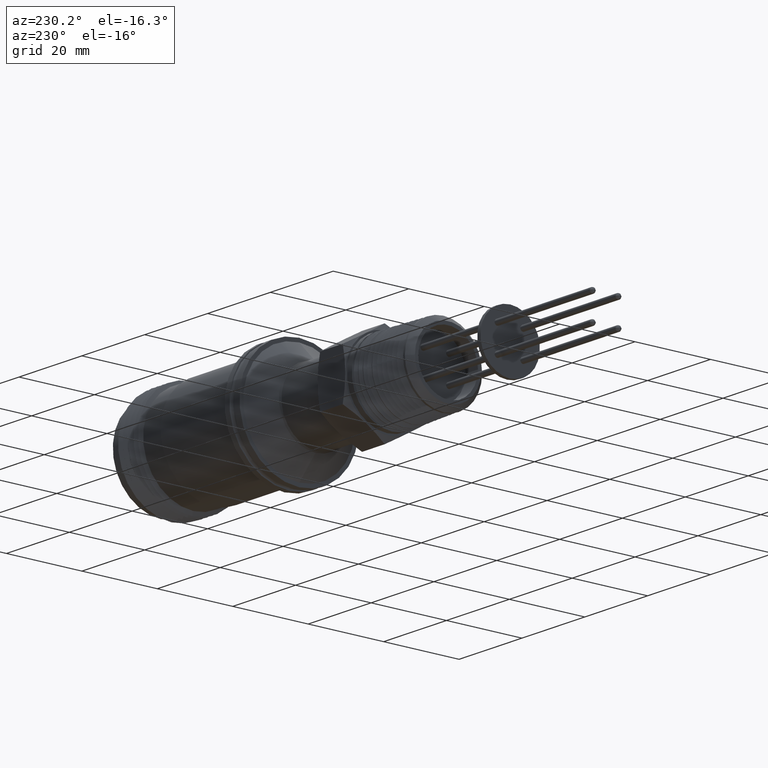
[diagram: clean part render]
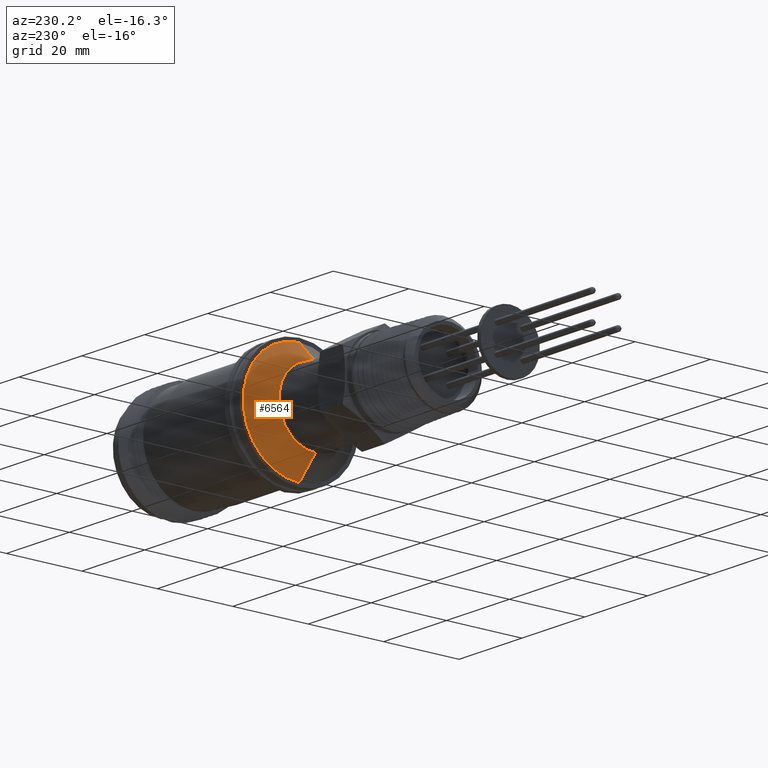
[diagram: same view with one face highlighted and labeled with its STEP entity id]
A machine part, auxiliary view. The second image highlights one B-rep face of the part: STEP entity #6564.
In plain terms, the highlighted conical surface has half-angle 45 deg.
Its self-contained STEP definition (entity closure, byte-faithful):
#63 = AXIS2_PLACEMENT_3D ( 'NONE', #2453, #2452, #2449 ) ;
#222 = CARTESIAN_POINT ( 'NONE',  ( 1.010360389693210700, -4.215224444734946500E-018, -0.3822867965644046700 ) ) ;
#232 = CARTESIAN_POINT ( 'NONE',  ( 1.214000000000000200, 7.175528987107189300E-017, 0.5859264068711952400 ) ) ;
#339 = DIRECTION ( 'NONE',  ( 0.0000000000000000000, 0.0000000000000000000, -1.000000000000000000 ) ) ;
#456 = DIRECTION ( 'NONE',  ( 1.000000000000000000, 4.139886575489495200E-017, 1.089615222878585900E-016 ) ) ;
#470 = CARTESIAN_POINT ( 'NONE',  ( 1.214000000000000200, 3.139028158307853400E-049, 8.261899943315120700E-049 ) ) ;
#860 = CIRCLE ( 'NONE', #63, 0.3822867965644046700 ) ;
#893 = VECTOR ( 'NONE', #2549, 39.37007874015748900 ) ;
#895 = LINE ( 'NONE', #2550, #893 ) ;
#903 = VECTOR ( 'NONE', #2556, 39.37007874015748900 ) ;
#906 = LINE ( 'NONE', #2557, #903 ) ;
#932 = CIRCLE ( 'NONE', #5517, 0.3822867965644046700 ) ;
#1456 = EDGE_LOOP ( 'NONE', ( #7039, #6606, #7154, #6839, #7136 ) ) ;
#2206 = AXIS2_PLACEMENT_3D ( 'NONE', #8227, #8226, #8225 ) ;
#2371 = AXIS2_PLACEMENT_3D ( 'NONE', #470, #456, #339 ) ;
#2449 = DIRECTION ( 'NONE',  ( 0.0000000000000000000, -0.9348021323207901200, 0.3551689364351896500 ) ) ;
#2452 = DIRECTION ( 'NONE',  ( 1.000000000000000000, 0.0000000000000000000, 0.0000000000000000000 ) ) ;
#2453 = CARTESIAN_POINT ( 'NONE',  ( 1.010360389693210700, 0.0000000000000000000, 0.0000000000000000000 ) ) ;
#2525 = DIRECTION ( 'NONE',  ( 1.000000000000000000, 0.0000000000000000000, 0.0000000000000000000 ) ) ;
#2526 = DIRECTION ( 'NONE',  ( 0.0000000000000000000, -0.9348021323207901200, 0.3551689364351896500 ) ) ;
#2529 = CARTESIAN_POINT ( 'NONE',  ( 1.010360389693210700, 0.0000000000000000000, 0.0000000000000000000 ) ) ;
#2549 = DIRECTION ( 'NONE',  ( 0.7071067811865452400, 2.927341870871765800E-017, -0.7071067811865496800 ) ) ;
#2550 = CARTESIAN_POINT ( 'NONE',  ( 1.214000000000000200, 3.139028158307853400E-049, -0.5859264068711953500 ) ) ;
#2556 = DIRECTION ( 'NONE',  ( 0.7071067811865450200, 1.158690243322672600E-016, 0.7071067811865499000 ) ) ;
#2557 = CARTESIAN_POINT ( 'NONE',  ( 1.214000000000000200, 7.175528987107190600E-017, 0.5859264068711953500 ) ) ;
#2964 = EDGE_CURVE ( 'NONE', #7597, #6774, #3072, .T. ) ;
#3072 = CIRCLE ( 'NONE', #2206, 0.5859264068711953500 ) ;
#5321 = EDGE_CURVE ( 'NONE', #6794, #6934, #932, .T. ) ;
#5335 = EDGE_CURVE ( 'NONE', #7444, #6774, #906, .T. ) ;
#5341 = EDGE_CURVE ( 'NONE', #6794, #7597, #895, .T. ) ;
#5365 = EDGE_CURVE ( 'NONE', #6934, #7444, #860, .T. ) ;
#5517 = AXIS2_PLACEMENT_3D ( 'NONE', #2529, #2525, #2526 ) ;
#5671 = CARTESIAN_POINT ( 'NONE',  ( 1.010360389693210700, 0.3573625125864889300, -0.1357763949489951500 ) ) ;
#5818 = CARTESIAN_POINT ( 'NONE',  ( 1.010360389693210700, 5.507073557924568300E-017, 0.3822867965644046700 ) ) ;
#5887 = CARTESIAN_POINT ( 'NONE',  ( 1.214000000000000200, 2.643045722089860000E-033, -0.5859264068711954600 ) ) ;
#6432 = CONICAL_SURFACE ( 'NONE', #2371, 0.5859264068711953500, 0.7853981633974516100 ) ;
#6440 = FACE_OUTER_BOUND ( 'NONE', #1456, .T. ) ;
#6564 = ADVANCED_FACE ( 'NONE', ( #6440 ), #6432, .T. ) ;
#6606 = ORIENTED_EDGE ( 'NONE', *, *, #5365, .T. ) ;
#6774 = VERTEX_POINT ( 'NONE', #232 ) ;
#6794 = VERTEX_POINT ( 'NONE', #222 ) ;
#6839 = ORIENTED_EDGE ( 'NONE', *, *, #2964, .F. ) ;
#6934 = VERTEX_POINT ( 'NONE', #5671 ) ;
#7039 = ORIENTED_EDGE ( 'NONE', *, *, #5321, .T. ) ;
#7136 = ORIENTED_EDGE ( 'NONE', *, *, #5341, .F. ) ;
#7154 = ORIENTED_EDGE ( 'NONE', *, *, #5335, .T. ) ;
#7444 = VERTEX_POINT ( 'NONE', #5818 ) ;
#7597 = VERTEX_POINT ( 'NONE', #5887 ) ;
#8225 = DIRECTION ( 'NONE',  ( 0.0000000000000000000, 0.0000000000000000000, -1.000000000000000000 ) ) ;
#8226 = DIRECTION ( 'NONE',  ( 1.000000000000000000, 4.139886575489495200E-017, 1.089615222878585900E-016 ) ) ;
#8227 = CARTESIAN_POINT ( 'NONE',  ( 1.214000000000000200, 3.139028158307853400E-049, 8.261899943315120700E-049 ) ) ;